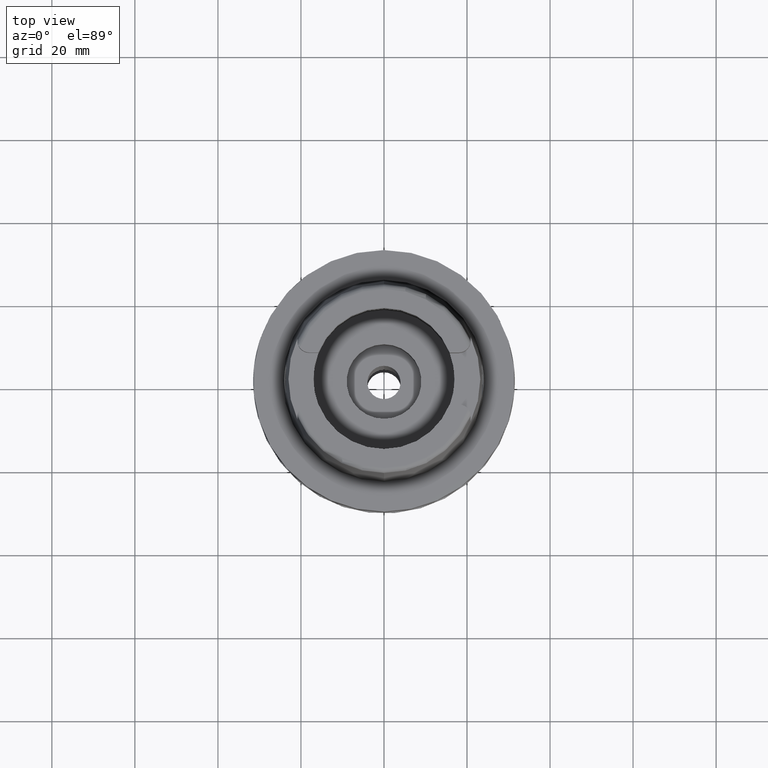
[diagram: clean part render]
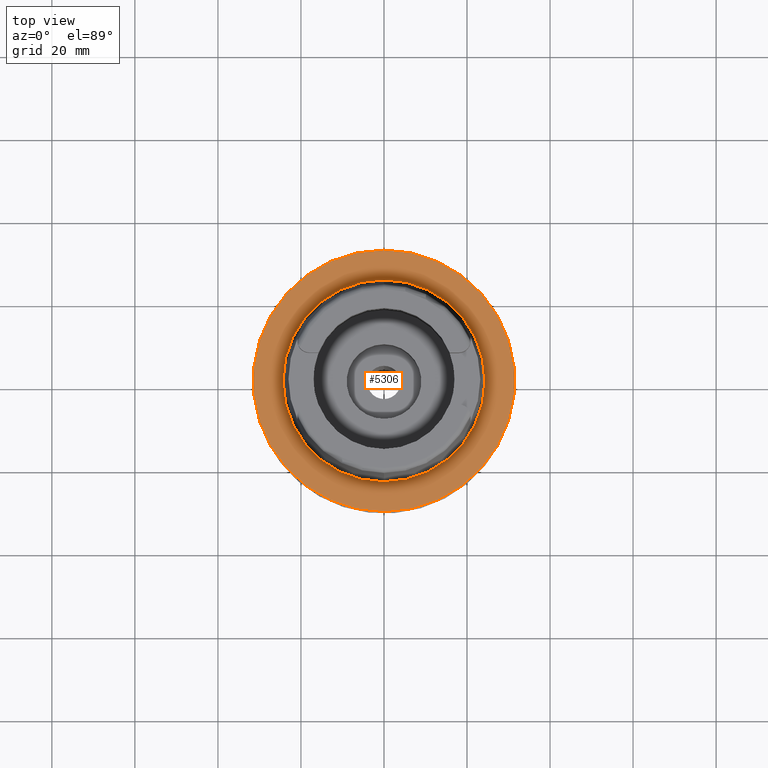
[diagram: same view with one face highlighted and labeled with its STEP entity id]
A machine part, top view. The second image highlights one B-rep face of the part: STEP entity #5306.
In plain terms, the highlighted planar face has unit normal (0, 0, -1).
Its self-contained STEP definition (entity closure, byte-faithful):
#156 = CARTESIAN_POINT ( 'NONE',  ( 0.0000000000000000000, 0.0000000000000000000, 1.136868377215999875E-13 ) ) ;
#218 = AXIS2_PLACEMENT_3D ( 'NONE', #3871, #1310, #4250 ) ;
#263 = VERTEX_POINT ( 'NONE', #2461 ) ;
#303 = EDGE_CURVE ( 'NONE', #5319, #3505, #1604, .T. ) ;
#306 = CIRCLE ( 'NONE', #218, 31.50000000000000000 ) ;
#660 = AXIS2_PLACEMENT_3D ( 'NONE', #2043, #823, #4863 ) ;
#696 = EDGE_CURVE ( 'NONE', #3505, #5319, #3536, .T. ) ;
#717 = CARTESIAN_POINT ( 'NONE',  ( 0.0000000000000000000, -24.31503482328999866, 1.882938249763999678E-13 ) ) ;
#745 = FACE_OUTER_BOUND ( 'NONE', #847, .T. ) ;
#770 = DIRECTION ( 'NONE',  ( 0.0000000000000000000, 0.0000000000000000000, -1.000000000000000000 ) ) ;
#823 = DIRECTION ( 'NONE',  ( 0.0000000000000000000, 0.0000000000000000000, -1.000000000000000000 ) ) ;
#826 = DIRECTION ( 'NONE',  ( 0.0000000000000000000, 0.0000000000000000000, 1.000000000000000000 ) ) ;
#847 = EDGE_LOOP ( 'NONE', ( #2510, #4525 ) ) ;
#1304 = ORIENTED_EDGE ( 'NONE', *, *, #303, .F. ) ;
#1310 = DIRECTION ( 'NONE',  ( 0.0000000000000000000, 0.0000000000000000000, -1.000000000000000000 ) ) ;
#1443 = AXIS2_PLACEMENT_3D ( 'NONE', #3656, #770, #3292 ) ;
#1604 = CIRCLE ( 'NONE', #3882, 24.31503482328999866 ) ;
#1658 = DIRECTION ( 'NONE',  ( 0.0000000000000000000, 1.000000000000000000, 0.0000000000000000000 ) ) ;
#1854 = CIRCLE ( 'NONE', #1443, 31.50000000000000000 ) ;
#2043 = CARTESIAN_POINT ( 'NONE',  ( 0.0000000000000000000, 0.0000000000000000000, 0.0000000000000000000 ) ) ;
#2310 = AXIS2_PLACEMENT_3D ( 'NONE', #2818, #826, #1658 ) ;
#2454 = PLANE ( 'NONE',  #660 ) ;
#2461 = CARTESIAN_POINT ( 'NONE',  ( 0.0000000000000000000, -31.50000000000000000, 9.947598300640998705E-14 ) ) ;
#2510 = ORIENTED_EDGE ( 'NONE', *, *, #3735, .F. ) ;
#2587 = CARTESIAN_POINT ( 'NONE',  ( 0.0000000000000000000, 31.50000000000000000, 9.947598300640998705E-14 ) ) ;
#2818 = CARTESIAN_POINT ( 'NONE',  ( 0.0000000000000000000, 0.0000000000000000000, 1.136868377215999875E-13 ) ) ;
#2866 = EDGE_LOOP ( 'NONE', ( #4317, #1304 ) ) ;
#2979 = DIRECTION ( 'NONE',  ( 0.0000000000000000000, 0.0000000000000000000, 1.000000000000000000 ) ) ;
#3292 = DIRECTION ( 'NONE',  ( 0.0000000000000000000, 1.000000000000000000, 0.0000000000000000000 ) ) ;
#3445 = VERTEX_POINT ( 'NONE', #2587 ) ;
#3505 = VERTEX_POINT ( 'NONE', #4800 ) ;
#3536 = CIRCLE ( 'NONE', #2310, 24.31503482328999866 ) ;
#3656 = CARTESIAN_POINT ( 'NONE',  ( 0.0000000000000000000, 0.0000000000000000000, 9.947598300640998705E-14 ) ) ;
#3735 = EDGE_CURVE ( 'NONE', #3445, #263, #1854, .T. ) ;
#3871 = CARTESIAN_POINT ( 'NONE',  ( 0.0000000000000000000, 0.0000000000000000000, 9.947598300640998705E-14 ) ) ;
#3882 = AXIS2_PLACEMENT_3D ( 'NONE', #156, #2979, #4648 ) ;
#4250 = DIRECTION ( 'NONE',  ( 0.0000000000000000000, -1.000000000000000000, 0.0000000000000000000 ) ) ;
#4317 = ORIENTED_EDGE ( 'NONE', *, *, #696, .F. ) ;
#4525 = ORIENTED_EDGE ( 'NONE', *, *, #5095, .F. ) ;
#4648 = DIRECTION ( 'NONE',  ( 0.0000000000000000000, -1.000000000000000000, 0.0000000000000000000 ) ) ;
#4800 = CARTESIAN_POINT ( 'NONE',  ( 0.0000000000000000000, 24.31503482328999866, 1.136868377215999875E-13 ) ) ;
#4863 = DIRECTION ( 'NONE',  ( 0.0000000000000000000, -1.000000000000000000, 0.0000000000000000000 ) ) ;
#5095 = EDGE_CURVE ( 'NONE', #263, #3445, #306, .T. ) ;
#5306 = ADVANCED_FACE ( 'NONE', ( #745, #5398 ), #2454, .F. ) ;
#5319 = VERTEX_POINT ( 'NONE', #717 ) ;
#5398 = FACE_BOUND ( 'NONE', #2866, .T. ) ;